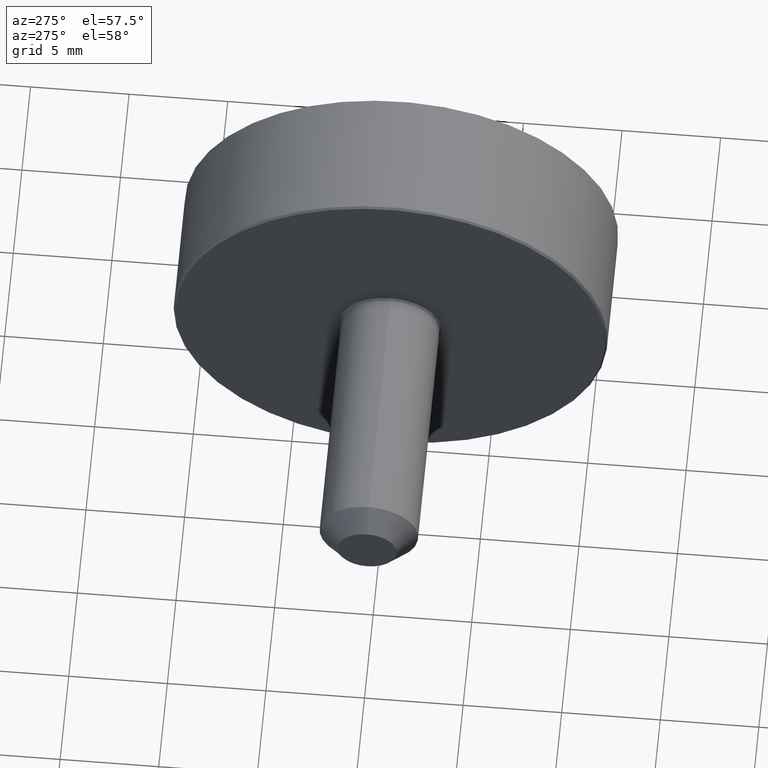
[diagram: clean part render]
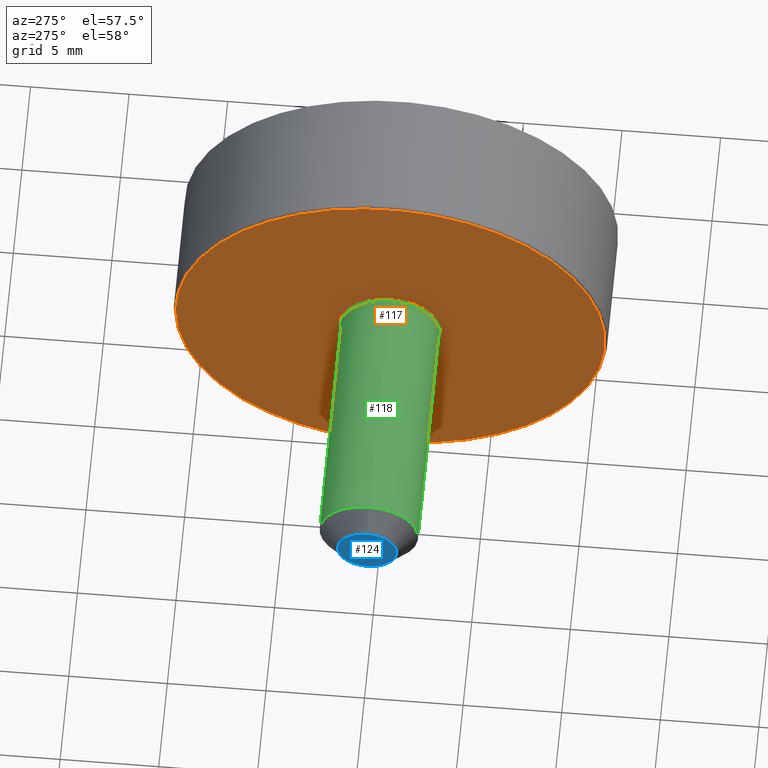
[diagram: same view with three faces highlighted in distinct colors, each labeled with its STEP entity id]
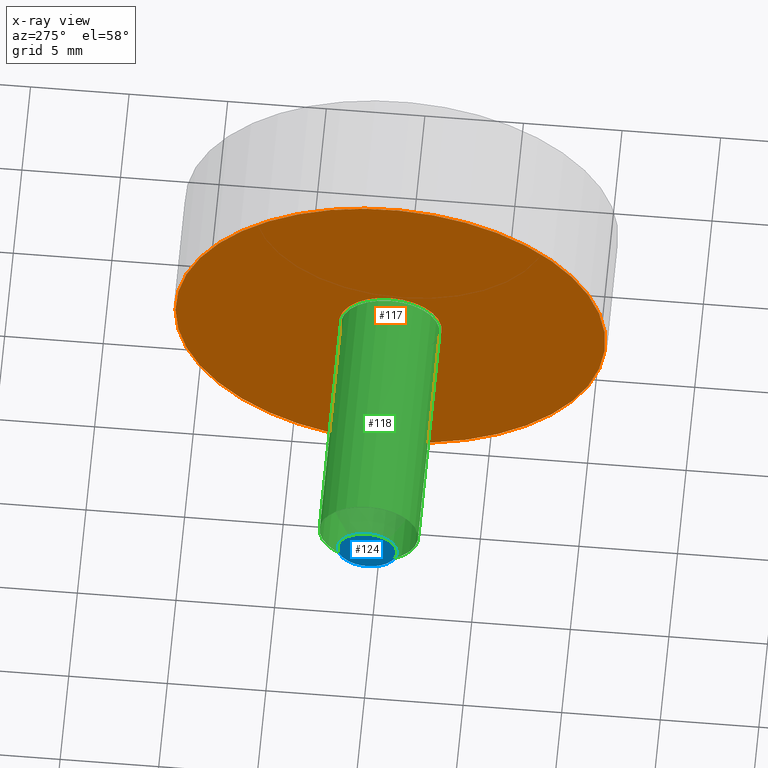
[diagram: x-ray of the same camera — body ghosted, the three highlighted faces saturated]
A machine part, auxiliary view with three faces highlighted in distinct colors.
The next image is the same camera in x-ray (body ghosted, the three faces saturated) — at least one of them is partly hidden behind the body in this view.
Their STEP definitions:

[orange] entity #117 — the highlighted planar face has unit normal (1, 0, 0).
#18=PLANE('',#132);
#23=FACE_BOUND('',#45,.T.);
#32=FACE_OUTER_BOUND('',#44,.T.);
#44=EDGE_LOOP('',(#94));
#45=EDGE_LOOP('',(#95));
#63=CIRCLE('',#131,2.6);
#64=CIRCLE('',#133,10.9);
#73=VERTEX_POINT('',#198);
#74=VERTEX_POINT('',#201);
#83=EDGE_CURVE('',#73,#73,#63,.T.);
#84=EDGE_CURVE('',#74,#74,#64,.T.);
#94=ORIENTED_EDGE('',*,*,#84,.F.);
#95=ORIENTED_EDGE('',*,*,#83,.F.);
#117=ADVANCED_FACE('',(#32,#23),#18,.F.);
#131=AXIS2_PLACEMENT_3D('',#199,#156,#157);
#132=AXIS2_PLACEMENT_3D('',#200,#158,#159);
#133=AXIS2_PLACEMENT_3D('',#202,#160,#161);
#156=DIRECTION('center_axis',(-1.,0.,0.));
#157=DIRECTION('ref_axis',(0.,0.,-1.));
#158=DIRECTION('center_axis',(1.,0.,0.));
#159=DIRECTION('ref_axis',(0.,0.,-1.));
#160=DIRECTION('center_axis',(1.,0.,0.));
#161=DIRECTION('ref_axis',(0.,-1.,0.));
#198=CARTESIAN_POINT('',(0.,3.18408167778312E-16,2.6));
#199=CARTESIAN_POINT('Origin',(0.,0.,0.));
#200=CARTESIAN_POINT('Origin',(0.,-4.48690509505221E-16,1.6821560979169E-16));
#201=CARTESIAN_POINT('',(0.,10.9,1.33486501107062E-15));
#202=CARTESIAN_POINT('Origin',(0.,0.,0.));

[blue] entity #124 — the highlighted planar face has unit normal (1, 0, 0).
#20=PLANE('',#146);
#39=FACE_OUTER_BOUND('',#58,.T.);
#58=EDGE_LOOP('',(#108));
#70=CIRCLE('',#145,1.5);
#80=VERTEX_POINT('',#219);
#90=EDGE_CURVE('',#80,#80,#70,.T.);
#108=ORIENTED_EDGE('',*,*,#90,.F.);
#124=ADVANCED_FACE('',(#39),#20,.F.);
#145=AXIS2_PLACEMENT_3D('',#220,#184,#185);
#146=AXIS2_PLACEMENT_3D('',#221,#186,#187);
#184=DIRECTION('center_axis',(1.,0.,0.));
#185=DIRECTION('ref_axis',(0.,0.,-1.));
#186=DIRECTION('center_axis',(1.,0.,0.));
#187=DIRECTION('ref_axis',(0.,0.,-1.));
#219=CARTESIAN_POINT('',(-13.5,-1.83697019872103E-16,1.5));
#220=CARTESIAN_POINT('Origin',(-13.5,0.,0.));
#221=CARTESIAN_POINT('Origin',(-13.5,4.62592926927149E-17,-1.18032060367666E-16));

[green] entity #118 — the highlighted cylindrical surface (bore or boss wall) has radius 2.5 mm, axis along (-1, 0, 0).
#15=CYLINDRICAL_SURFACE('',#134,2.5);
#24=FACE_BOUND('',#47,.T.);
#33=FACE_OUTER_BOUND('',#46,.T.);
#46=EDGE_LOOP('',(#96));
#47=EDGE_LOOP('',(#97));
#62=CIRCLE('',#130,2.5);
#65=CIRCLE('',#135,2.5);
#72=VERTEX_POINT('',#196);
#75=VERTEX_POINT('',#204);
#82=EDGE_CURVE('',#72,#72,#62,.T.);
#85=EDGE_CURVE('',#75,#75,#65,.T.);
#96=ORIENTED_EDGE('',*,*,#85,.F.);
#97=ORIENTED_EDGE('',*,*,#82,.F.);
#118=ADVANCED_FACE('',(#33,#24),#15,.T.);
#130=AXIS2_PLACEMENT_3D('',#197,#154,#155);
#134=AXIS2_PLACEMENT_3D('',#203,#162,#163);
#135=AXIS2_PLACEMENT_3D('',#205,#164,#165);
#154=DIRECTION('center_axis',(1.,0.,0.));
#155=DIRECTION('ref_axis',(0.,0.,-1.));
#162=DIRECTION('center_axis',(-1.,0.,0.));
#163=DIRECTION('ref_axis',(0.,0.,-1.));
#164=DIRECTION('center_axis',(-1.,0.,0.));
#165=DIRECTION('ref_axis',(0.,0.,-1.));
#196=CARTESIAN_POINT('',(-0.1,-3.06161699786838E-16,2.5));
#197=CARTESIAN_POINT('Origin',(-0.1,0.,0.));
#203=CARTESIAN_POINT('Origin',(0.,0.,0.));
#204=CARTESIAN_POINT('',(-12.5,3.06161699786838E-16,2.5));
#205=CARTESIAN_POINT('Origin',(-12.5,0.,0.));